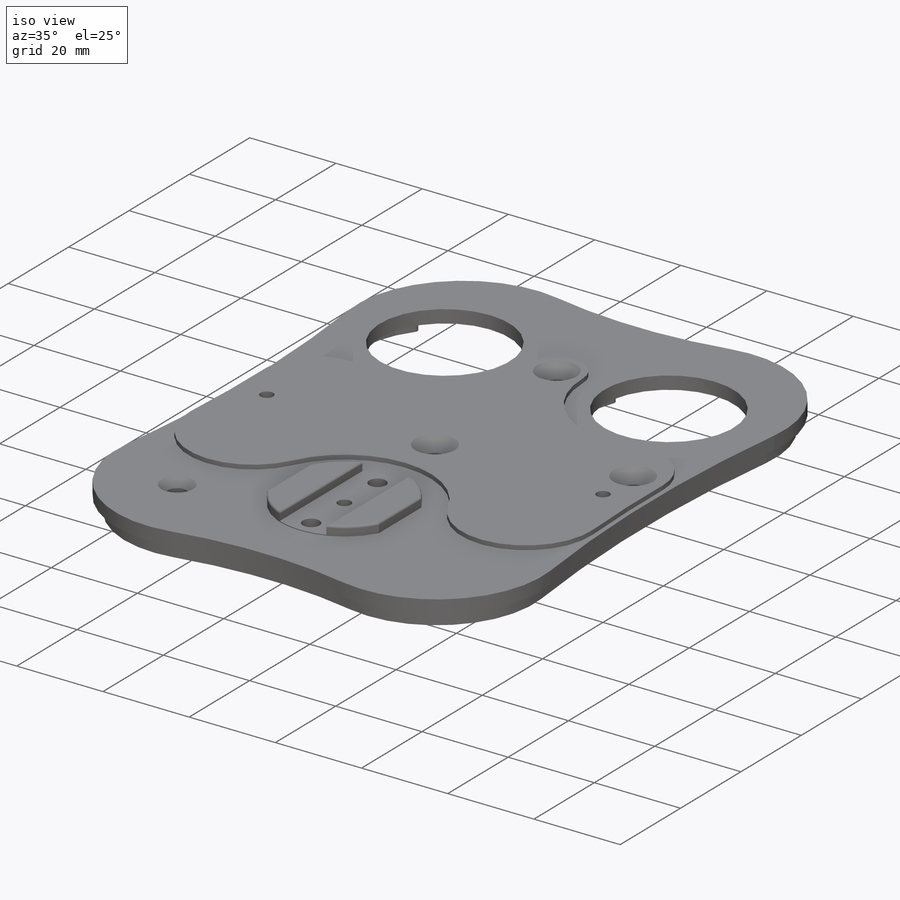
[diagram: iso view]
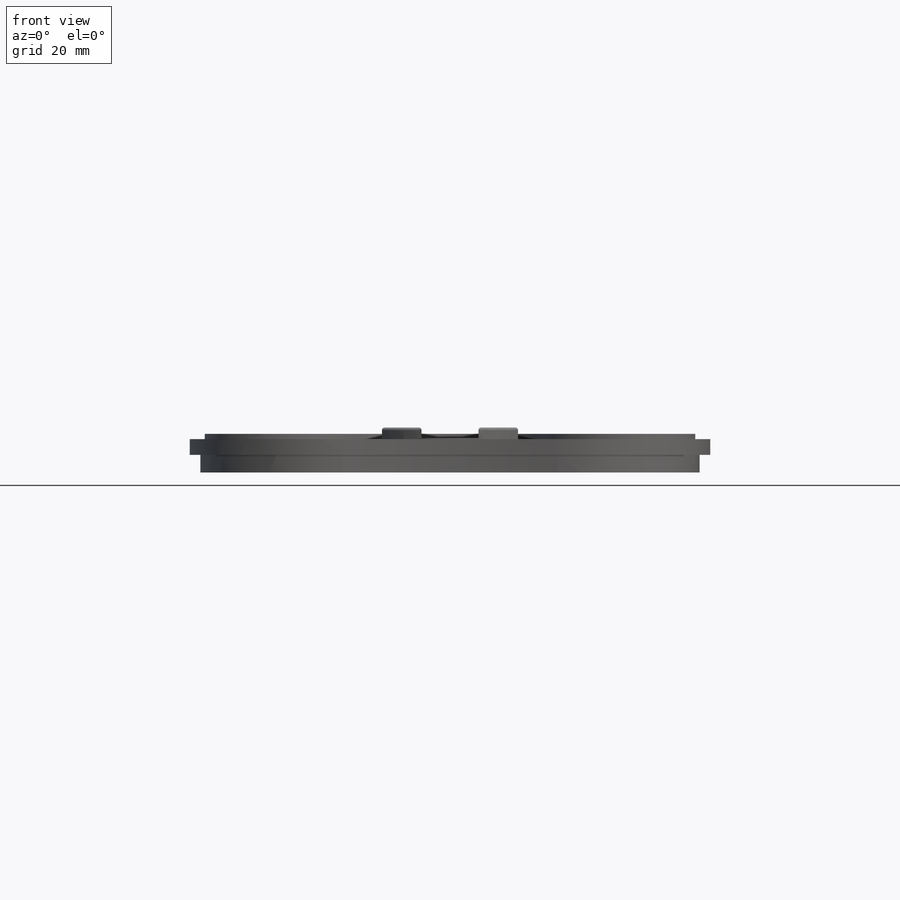
[diagram: front view]
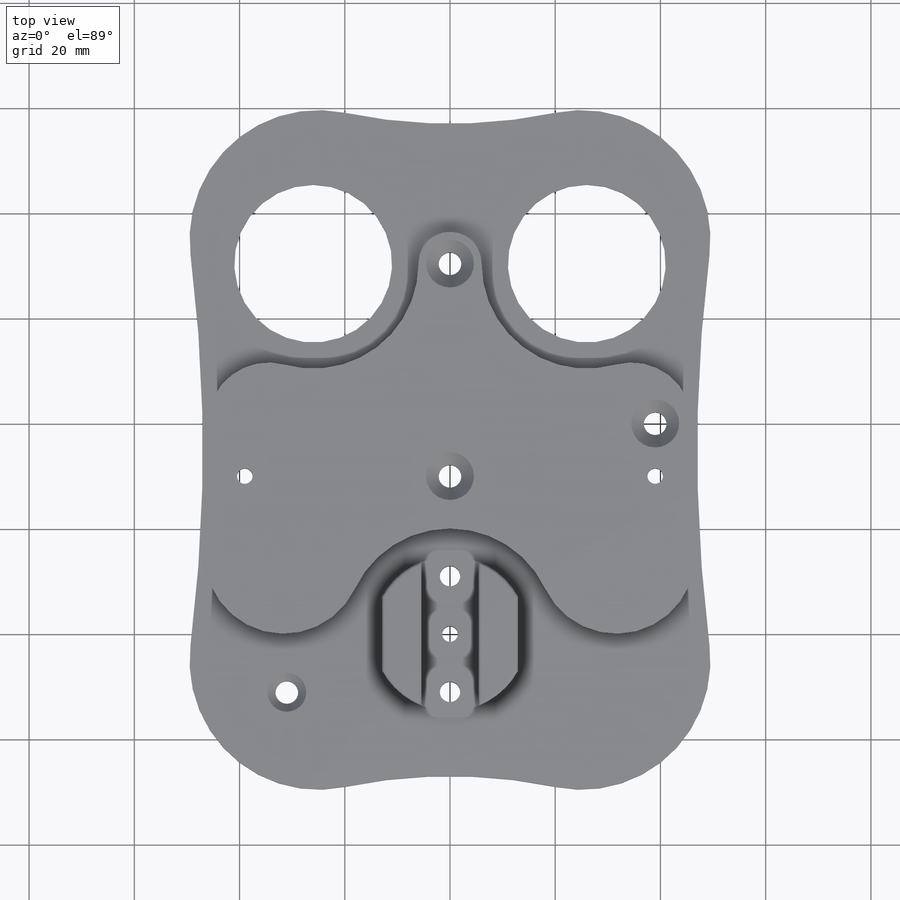
[diagram: top view]
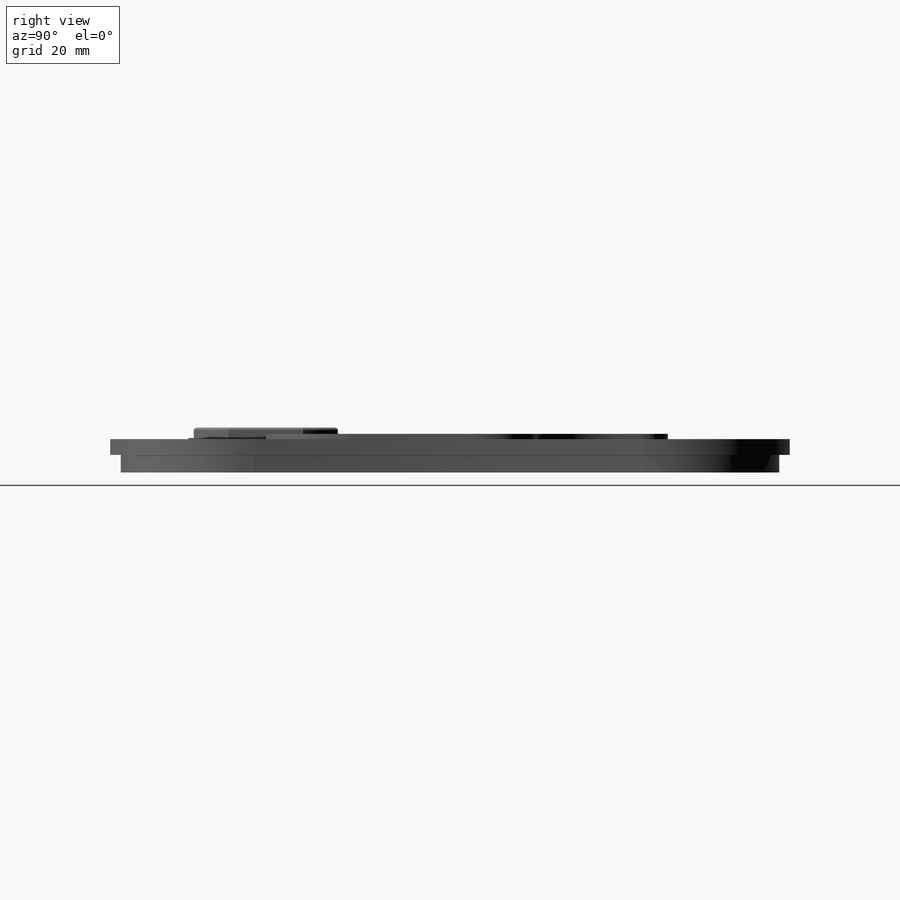
[diagram: right view]
SOLIDWORKS PART (.sldprt)
format: sldprt  version: not decoded by parser v0  size: 712,192 bytes
history: native  units: mm
features: sketch x12, extrude x4, cut_extrude x4, hole x2, material x1, fillet x1, move_body x1, boolean_combine x1 + 2 further entries (+22 scaffold rows collapsed; 8 parser-record rows omitted)
feature tree (58):
  scaffold x22  (default folders/planes/origin — collapsed)
  material  "ABS"
  "a_base_o"
  parser-record x8  (decoder bookkeeping rows leaked as tree rows — omitted from the tree; the rows remain in map.json)
  sketch  "Sketch16"  dims[D1=0.0mm]
  extrude  "Base Extension"  Depth=1.5mm
  sketch  "Sketch2"  dims[D1=36.0mm D2=24.0mm D5=38.36mm D6=26.36mm D3=7.5mm D4=3.2mm D7=0.0mm]
  extrude  "Gear Surround"  Depth=3.35mm
  sketch  "Sketch3"  dims[D1=30.0mm D2=10.0mm]
  cut_extrude  "Gear Support Clearance"  [1 undecoded]
  sketch  "Sketch5"  dims[c1.D3=22.35mm c1.D1=~24.45719mm c2.D1=45.0deg c2.D2=1.6mm c2.D3=2.1mm c2.D4=~23.842527mm c3.D4=15.0deg]
  cut_extrude  "Gear Anchor Clearance"  [1 undecoded]
  fillet  "Inner Contouring"  Radius=1mm
  sketch  "Sketch6"  dims[D1=0.0mm D2=2.0mm]
  extrude  "Outer Brim"  Depth=3mm
  sketch  "Sketch7"  dims[D2=3.89mm D1=22.0mm]
  cut_extrude  "c1 Mounting Holes"  [1 undecoded]
  "c2_middle_o"
  move_body  "Body-Move/Copy2"
  boolean_combine  "Combine1"
  sketch  "Sketch8"  dims[D1=40.0mm D2=1.0mm]
  extrude  "Pad Base"  Depth=1mm
  sketch  "Sketch12"  dims[D1=1.5mm D2=10.0mm]
  cut_extrude  "Pad Mounting Holes"  [1 undecoded]
  hole  "CSK for #8 Flat Head Socket Cap Screw1"  Diameter=4.3053mm Depth=7.35mm
  sketch  "Sketch10"
  sketch  "Sketch9"  dims[hole-wizard template sketch: 55 standard entries collapsed; hole parameters kept: c17.Thru Hole Depth=7.35mm c17.Near C'Sink Dia.=9.1186mm c17.D4=~3.666174mm c17.Near C'Sink Angle=82.0deg]
  hole  "CSK for #4 Flat Head Socket Cap Screw1"  Diameter=2.9464mm Depth=8.55mm
  sketch  "Sketch14"
  sketch  "Sketch13"  dims[hole-wizard template sketch: 55 standard entries collapsed; hole parameters kept: c17.Thru Hole Depth=8.55mm c17.Near C'Sink Dia.=6.477mm c17.D4=~3.666174mm c17.Near C'Sink Angle=82.0deg]
decode coverage: 17 of 25 modeling features carry decoded parameters; 2 rows unclassified (native names shown)
note: ~ marks probable driven/reference dimensions
note: 4 parameter values undecoded
summary: no parameter record found for 4 features
note: suppression state not decoded; provenance and decode notes live in map.json
